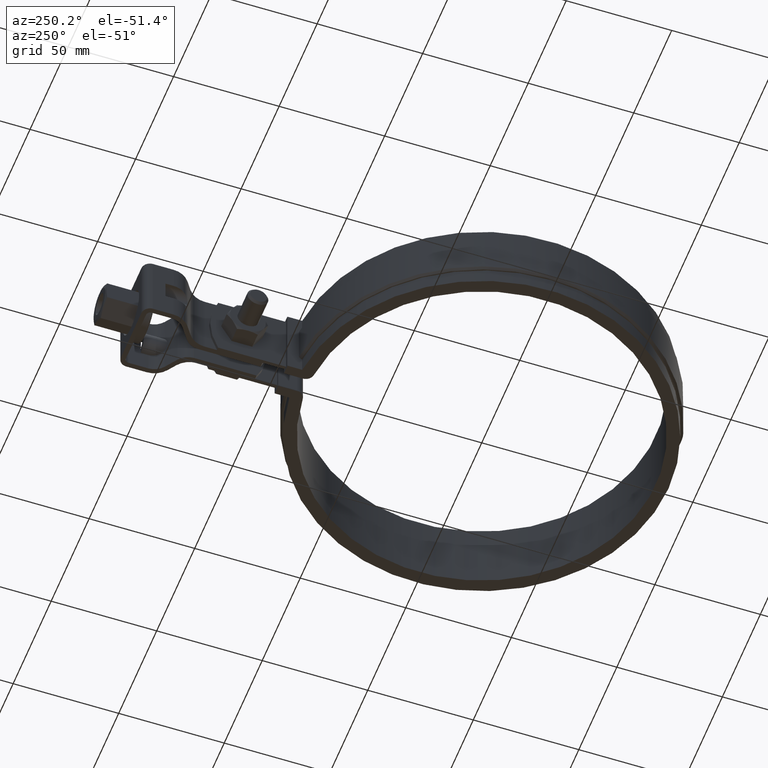
[diagram: clean part render]
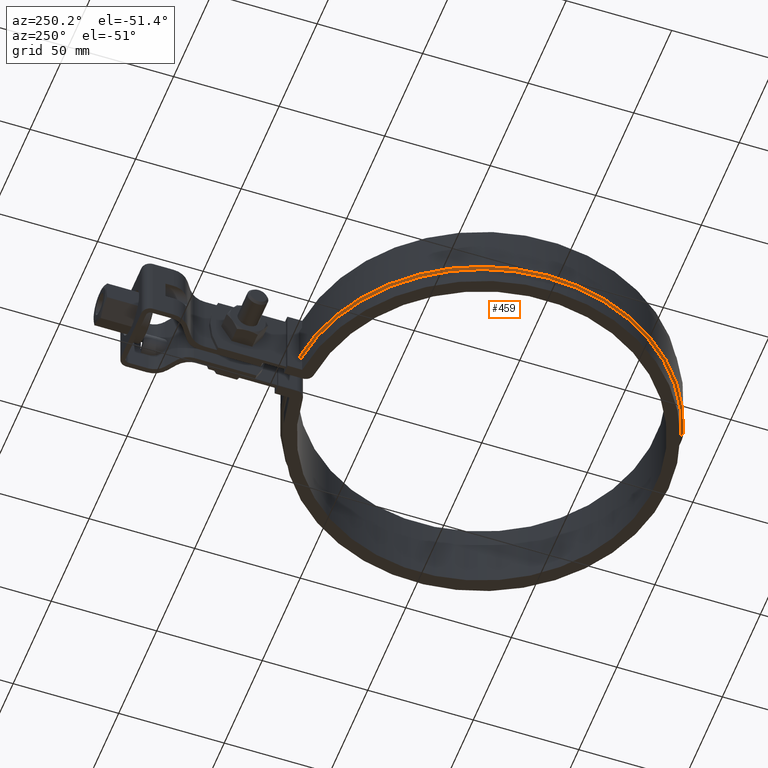
[diagram: same view with one face highlighted and labeled with its STEP entity id]
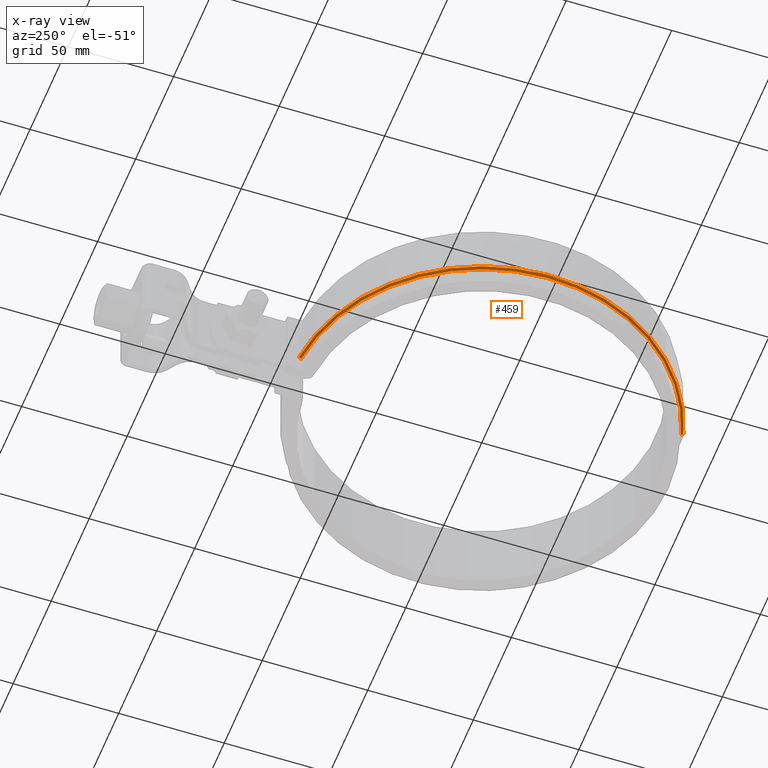
[diagram: x-ray of the same camera — body ghosted, the highlighted face saturated]
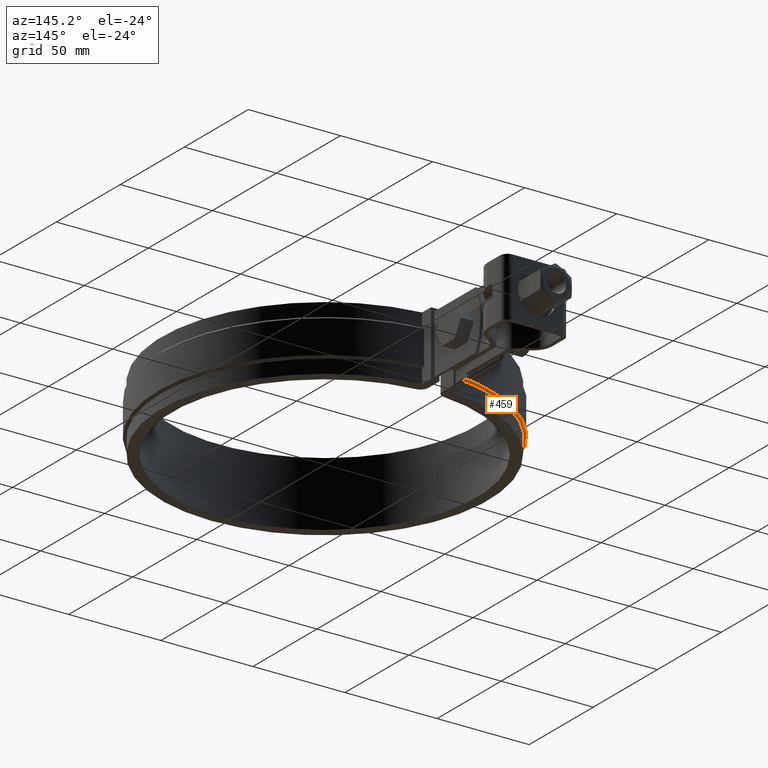
[diagram: same view with one face highlighted and labeled with its STEP entity id]
A machine part, auxiliary view. The second image highlights one B-rep face of the part: STEP entity #459.
The next image is the same camera in x-ray: the body ghosted, the highlighted face saturated — about 0% of this face is hidden behind the body in this view.
A second angle (auxiliary view) of the same face is appended — the face is thin or edge-on in the first view.
In plain terms, the highlighted conical surface has half-angle 45 deg.
Its self-contained STEP definition (entity closure, byte-faithful):
#459 = ADVANCED_FACE( '', ( #812 ), #813, .T. );
#812 = FACE_OUTER_BOUND( '', #1939, .T. );
#813 = CONICAL_SURFACE( '', #1940, 89.0000000000000, 0.785398163397455 );
#1939 = EDGE_LOOP( '', ( #4737, #4738, #4739, #4740 ) );
#1940 = AXIS2_PLACEMENT_3D( '', #4741, #4742, #4743 );
#4737 = ORIENTED_EDGE( '', *, *, #5393, .F. );
#4738 = ORIENTED_EDGE( '', *, *, #5400, .F. );
#4739 = ORIENTED_EDGE( '', *, *, #5401, .F. );
#4740 = ORIENTED_EDGE( '', *, *, #5402, .F. );
#4741 = CARTESIAN_POINT( '', ( 0.000000000000000, 0.000000000000000, -26.0000000000000 ) );
#4742 = DIRECTION( '', ( 0.000000000000000, 0.000000000000000, 1.00000000000000 ) );
#4743 = DIRECTION( '', ( 1.00000000000000, 0.000000000000000, 0.000000000000000 ) );
#5393 = EDGE_CURVE( '', #6181, #6184, #6185, .F. );
#5400 = EDGE_CURVE( '', #6196, #6181, #6197, .T. );
#5401 = EDGE_CURVE( '', #6198, #6196, #6199, .T. );
#5402 = EDGE_CURVE( '', #6184, #6198, #6200, .T. );
#6181 = VERTEX_POINT( '', #9425 );
#6184 = VERTEX_POINT( '', #9429 );
#6185 = B_SPLINE_CURVE_WITH_KNOTS( '', 3, ( #9430, #9431, #9432, #9433 ), .UNSPECIFIED., .F., .F., ( 4, 4 ), ( 706.979779913063, 706.981197265444 ), .UNSPECIFIED. );
#6196 = VERTEX_POINT( '', #9452 );
#6197 = CIRCLE( '', #9453, 89.0000000000000 );
#6198 = VERTEX_POINT( '', #9454 );
#6199 = LINE( '', #9455, #9456 );
#6200 = CIRCLE( '', #9457, 90.0000000000000 );
#9425 = CARTESIAN_POINT( '', ( -8.39999999999999, 88.6027087622043, -26.0000000000000 ) );
#9429 = CARTESIAN_POINT( '', ( -8.39999999999999, 89.6071425724534, -25.0000000000000 ) );
#9430 = CARTESIAN_POINT( '', ( -8.39999999999999, 89.6071425724304, -25.0000000000229 ) );
#9431 = CARTESIAN_POINT( '', ( -8.39999999999999, 89.2723395329180, -25.3333415966372 ) );
#9432 = CARTESIAN_POINT( '', ( -8.39999999999999, 88.9375283557251, -25.6666750232292 ) );
#9433 = CARTESIAN_POINT( '', ( -8.39999999999999, 88.6027087621825, -26.0000000000218 ) );
#9452 = CARTESIAN_POINT( '', ( -24.9200000000000, -85.4400000000000, -26.0000000000000 ) );
#9453 = AXIS2_PLACEMENT_3D( '', #10146, #10147, #10148 );
#9454 = CARTESIAN_POINT( '', ( -25.2000000000000, -86.4000000000000, -25.0000000000000 ) );
#9455 = CARTESIAN_POINT( '', ( -25.2000000000000, -86.4000000000000, -25.0000000000000 ) );
#9456 = VECTOR( '', #10149, 1000.00000000000 );
#9457 = AXIS2_PLACEMENT_3D( '', #10150, #10151, #10152 );
#10146 = CARTESIAN_POINT( '', ( 0.000000000000000, 0.000000000000000, -26.0000000000000 ) );
#10147 = DIRECTION( '', ( 0.000000000000000, 0.000000000000000, -1.00000000000000 ) );
#10148 = DIRECTION( '', ( -1.00000000000000, 0.000000000000000, 0.000000000000000 ) );
#10149 = DIRECTION( '', ( 0.197989898732236, 0.678822509939091, -0.707106781186542 ) );
#10150 = CARTESIAN_POINT( '', ( 0.000000000000000, 0.000000000000000, -25.0000000000000 ) );
#10151 = DIRECTION( '', ( 0.000000000000000, 0.000000000000000, 1.00000000000000 ) );
#10152 = DIRECTION( '', ( 1.00000000000000, 0.000000000000000, 0.000000000000000 ) );